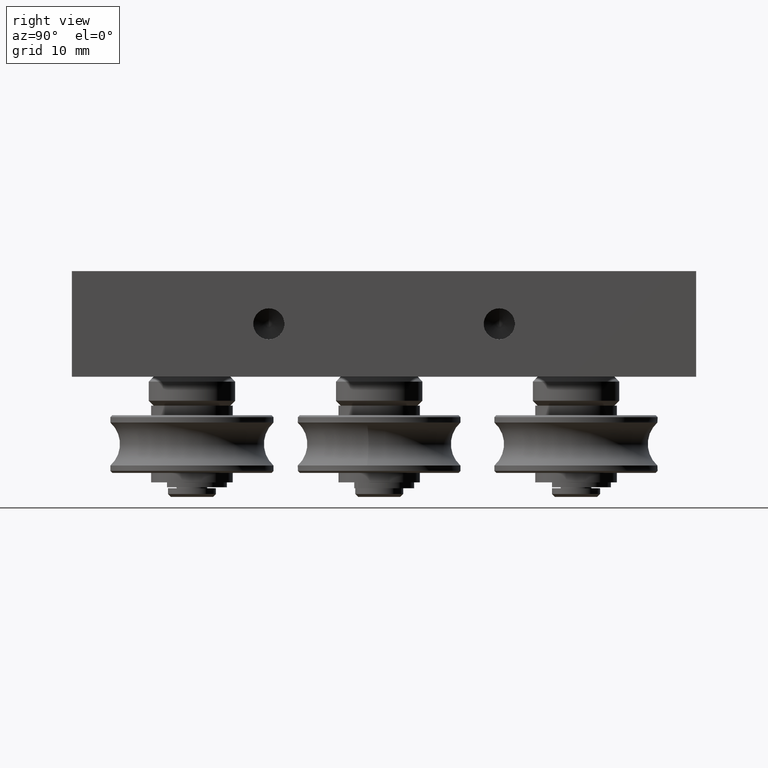
[diagram: clean part render]
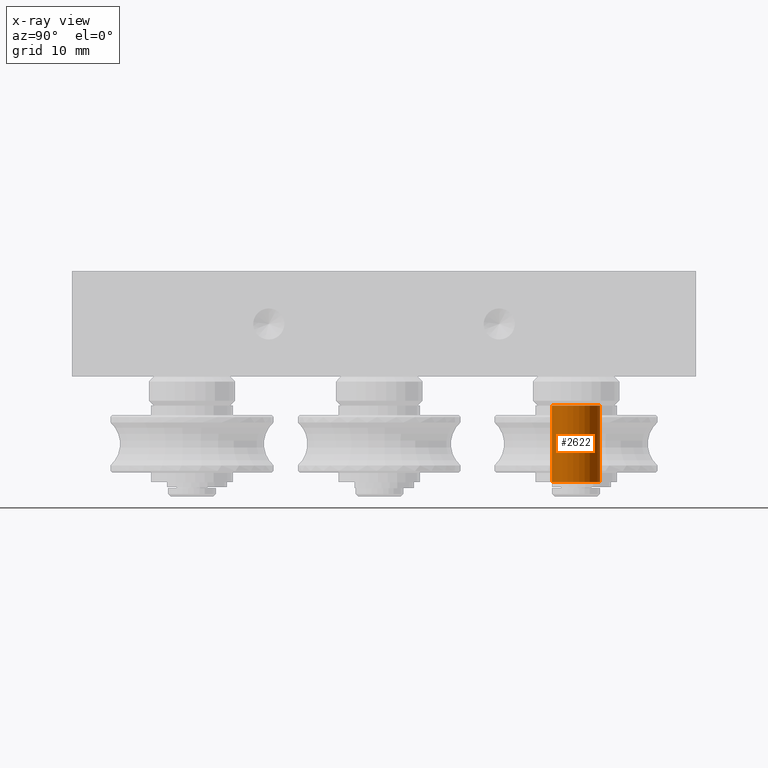
[diagram: x-ray — body ghosted, one internal face saturated and labeled with its STEP entity id]
A machine part, right view, then the same camera in x-ray: the body is ghosted and one INTERNAL B-rep face — a face not visible from any outside direction — is saturated and labeled: STEP entity #2622.
In plain terms, the highlighted cylindrical surface (bore or boss wall) has radius 2.5 mm, axis along (0, 0, 1).
Its self-contained STEP definition (entity closure, byte-faithful):
#264=CYLINDRICAL_SURFACE('',#3085,2.5);
#402=FACE_OUTER_BOUND('',#597,.T.);
#597=EDGE_LOOP('',(#2280,#2281,#2282,#2283));
#793=LINE('',#4584,#995);
#995=VECTOR('',#3797,2.5);
#1142=CIRCLE('',#3077,2.5);
#1145=CIRCLE('',#3084,2.5);
#1346=VERTEX_POINT('',#4570);
#1348=VERTEX_POINT('',#4581);
#1663=EDGE_CURVE('',#1346,#1346,#1142,.T.);
#1668=EDGE_CURVE('',#1348,#1348,#1145,.T.);
#1669=EDGE_CURVE('',#1348,#1346,#793,.T.);
#2280=ORIENTED_EDGE('',*,*,#1668,.T.);
#2281=ORIENTED_EDGE('',*,*,#1669,.T.);
#2282=ORIENTED_EDGE('',*,*,#1663,.F.);
#2283=ORIENTED_EDGE('',*,*,#1669,.F.);
#2622=ADVANCED_FACE('',(#402),#264,.F.);
#3077=AXIS2_PLACEMENT_3D('',#4571,#3777,#3778);
#3084=AXIS2_PLACEMENT_3D('',#4582,#3793,#3794);
#3085=AXIS2_PLACEMENT_3D('',#4583,#3795,#3796);
#3777=DIRECTION('center_axis',(1.,0.,0.));
#3778=DIRECTION('ref_axis',(0.,1.,0.));
#3793=DIRECTION('center_axis',(1.,0.,0.));
#3794=DIRECTION('ref_axis',(0.,1.,0.));
#3795=DIRECTION('center_axis',(1.,0.,0.));
#3796=DIRECTION('ref_axis',(0.,1.,0.));
#3797=DIRECTION('',(-1.,0.,0.));
#4570=CARTESIAN_POINT('',(-4.,-2.5,-3.06161699786838E-16));
#4571=CARTESIAN_POINT('Origin',(-4.,0.,0.));
#4581=CARTESIAN_POINT('',(4.,-2.5,-3.06161699786838E-16));
#4582=CARTESIAN_POINT('Origin',(4.,0.,0.));
#4583=CARTESIAN_POINT('Origin',(0.,0.,0.));
#4584=CARTESIAN_POINT('',(0.,-2.5,-3.06161699786838E-16));